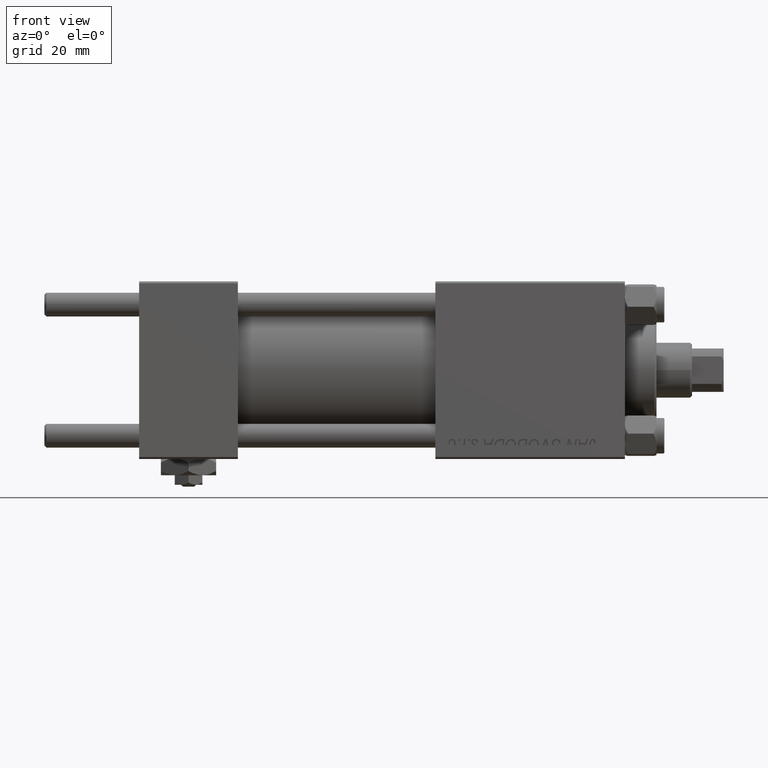
[diagram: clean part render]
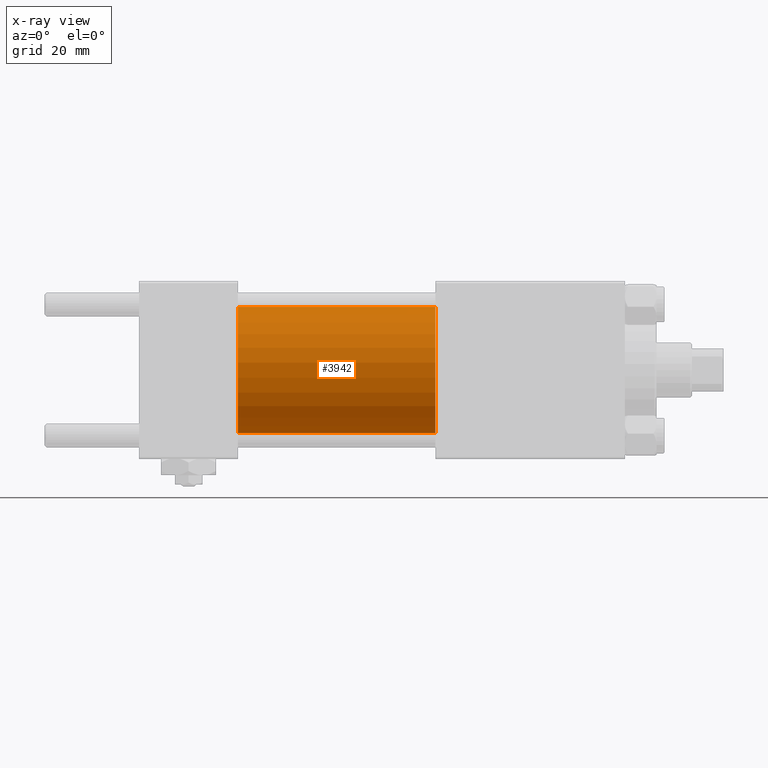
[diagram: x-ray — body ghosted, one internal face saturated and labeled with its STEP entity id]
A machine part, front view, then the same camera in x-ray: the body is ghosted and one INTERNAL B-rep face — a face not visible from any outside direction — is saturated and labeled: STEP entity #3942.
In plain terms, the highlighted cylindrical surface (partial cylindrical patch) has radius 16 mm, axis along (-1, -0, -0).
Its self-contained STEP definition (entity closure, byte-faithful):
#17 = DIRECTION ( 'NONE',  ( -1.000000000000000000, -0.000000000000000000, -0.000000000000000000 ) ) ;
#125 = LINE ( 'NONE', #28394, #46171 ) ;
#1367 = DIRECTION ( 'NONE',  ( 0.000000000000000000, 0.000000000000000000, -1.000000000000000000 ) ) ;
#3942 = ADVANCED_FACE ( 'NONE', ( #18903 ), #36339, .F. ) ;
#6201 = CARTESIAN_POINT ( 'NONE',  ( 25.00000000000000000, 0.000000000000000000, 16.00000000000000000 ) ) ;
#7677 = CIRCLE ( 'NONE', #16870, 16.00000000000000000 ) ;
#8260 = ORIENTED_EDGE ( 'NONE', *, *, #31926, .F. ) ;
#9032 = VECTOR ( 'NONE', #17, 1000.000000000000000 ) ;
#11905 = DIRECTION ( 'NONE',  ( -1.000000000000000000, -0.000000000000000000, -0.000000000000000000 ) ) ;
#12978 = EDGE_LOOP ( 'NONE', ( #35589, #27020, #8260, #38239 ) ) ;
#15976 = LINE ( 'NONE', #16491, #9032 ) ;
#16491 = CARTESIAN_POINT ( 'NONE',  ( 75.00000000000001421, 1.959434878635765131E-15, -16.00000000000000000 ) ) ;
#16870 = AXIS2_PLACEMENT_3D ( 'NONE', #23757, #41772, #36801 ) ;
#17032 = CARTESIAN_POINT ( 'NONE',  ( 75.00000000000001421, 0.000000000000000000, 16.00000000000000000 ) ) ;
#18140 = VERTEX_POINT ( 'NONE', #6201 ) ;
#18330 = CIRCLE ( 'NONE', #45902, 16.00000000000000000 ) ;
#18903 = FACE_OUTER_BOUND ( 'NONE', #12978, .T. ) ;
#23729 = EDGE_CURVE ( 'NONE', #40058, #24336, #15976, .T. ) ;
#23757 = CARTESIAN_POINT ( 'NONE',  ( 25.00000000000000000, 0.000000000000000000, 0.000000000000000000 ) ) ;
#24237 = CARTESIAN_POINT ( 'NONE',  ( 25.00000000000000000, 1.959434878635765131E-15, -16.00000000000000000 ) ) ;
#24336 = VERTEX_POINT ( 'NONE', #24237 ) ;
#24935 = CARTESIAN_POINT ( 'NONE',  ( 75.00000000000001421, 0.000000000000000000, 0.000000000000000000 ) ) ;
#25442 = DIRECTION ( 'NONE',  ( 1.000000000000000000, 0.000000000000000000, 0.000000000000000000 ) ) ;
#26032 = EDGE_CURVE ( 'NONE', #36802, #40058, #18330, .T. ) ;
#27020 = ORIENTED_EDGE ( 'NONE', *, *, #23729, .T. ) ;
#28394 = CARTESIAN_POINT ( 'NONE',  ( 75.00000000000001421, 0.000000000000000000, 16.00000000000000000 ) ) ;
#31926 = EDGE_CURVE ( 'NONE', #18140, #24336, #7677, .T. ) ;
#32432 = DIRECTION ( 'NONE',  ( -1.000000000000000000, -0.000000000000000000, -0.000000000000000000 ) ) ;
#34037 = EDGE_CURVE ( 'NONE', #36802, #18140, #125, .T. ) ;
#35589 = ORIENTED_EDGE ( 'NONE', *, *, #26032, .T. ) ;
#36339 = CYLINDRICAL_SURFACE ( 'NONE', #38554, 16.00000000000000000 ) ;
#36801 = DIRECTION ( 'NONE',  ( 0.000000000000000000, 0.000000000000000000, -1.000000000000000000 ) ) ;
#36802 = VERTEX_POINT ( 'NONE', #17032 ) ;
#38239 = ORIENTED_EDGE ( 'NONE', *, *, #34037, .F. ) ;
#38554 = AXIS2_PLACEMENT_3D ( 'NONE', #50831, #32432, #39037 ) ;
#39037 = DIRECTION ( 'NONE',  ( 0.000000000000000000, 0.000000000000000000, 1.000000000000000000 ) ) ;
#39192 = CARTESIAN_POINT ( 'NONE',  ( 75.00000000000001421, 1.959434878635765131E-15, -16.00000000000000000 ) ) ;
#40058 = VERTEX_POINT ( 'NONE', #39192 ) ;
#41772 = DIRECTION ( 'NONE',  ( 1.000000000000000000, 0.000000000000000000, 0.000000000000000000 ) ) ;
#45902 = AXIS2_PLACEMENT_3D ( 'NONE', #24935, #25442, #1367 ) ;
#46171 = VECTOR ( 'NONE', #11905, 1000.000000000000000 ) ;
#50831 = CARTESIAN_POINT ( 'NONE',  ( 75.00000000000001421, 0.000000000000000000, 0.000000000000000000 ) ) ;